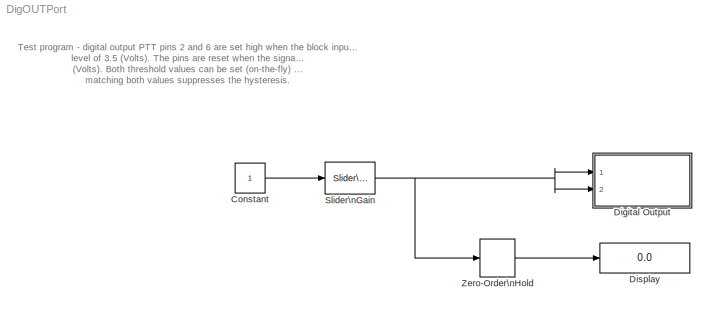
MODEL DigOUTPort
KIND model
BLOCK [Constant] Constant
  SID = 1
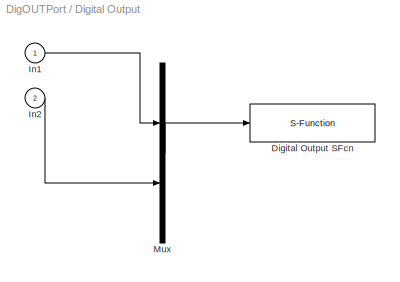
BLOCK [SubSystem] Digital Output
  Ports = [2]
  RequestExecContextInheritance = off
  SID = 2
  ShowPortLabels = none
  Tag = mcTarget_digOut
BLOCK [S-Function] Digital Output/Digital Output SFcn
  EnableBusSupport = off
  FunctionName = digOut_sfcn_9S12
  Parameters = sampletime, port, pins, Von, Voff
  Ports = [1]
  SFcnIsStateOwnerBlock = off
  SFunctionDeploymentMode = off
  SID = 2:3
  Tag = mcTarget_digOut
BLOCK [Inport] Digital Output/In1
  IconDisplay = Port number
  SID = 2:1
BLOCK [Inport] Digital Output/In2
  IconDisplay = Port number
  Port = 2
  SID = 2:2
BLOCK [Mux] Digital Output/Mux
  DisplayOption = bar
  Inputs = 2
  Ports = [2, 1]
  SID = 2:4
BLOCK [Display] Display
  Decimation = 1
  Ports = [1]
  SID = 3
BLOCK [Reference] Slider\nGain  REF=simulink/Math\nOperations/Slider\nGain
  FunctionWithSeparateData = off
  Ports = [1, 1]
  RTWMemSecDataConstants = Inherit from model
  RTWMemSecDataInternal = Inherit from model
  RTWMemSecDataParameters = Inherit from model
  RTWMemSecFuncExecute = Inherit from model
  RTWMemSecFuncInitTerm = Inherit from model
  SID = 4
  ShowPortLabels = FromPortIcon
  SourceBlock = simulink/Math\nOperations/Slider\nGain
  SourceProductBaseCode = SL
  SourceProductName = Simulink
  SourceType = Slider Gain
  SystemSampleTime = -1
  gain = 3.7373
  high = 5
  low = 0
BLOCK [ZeroOrderHold] Zero-Order\nHold
  SID = 5
  SampleTime = 0.1
ANNOTATION (root): Test program - digital output PTT pins 2 and 6 are set high when the block input signal reaches a\n level of 3.5 (Volts). The pins are reset when the signal level falls below 1.5 \n (Volts). Both threshold values can be set (on-the-fly) in the block parameters; \n matching both values suppresses the hysteresis.
LINE Constant:1 -> Slider\nGain:1
LINE Digital Output/In1:1 -> Digital Output/Mux:1
LINE Digital Output/In2:1 -> Digital Output/Mux:2
LINE Digital Output/Mux:1 -> Digital Output/Digital Output SFcn:1
NET Slider\nGain:1 -> Digital Output:1, Digital Output:2, Zero-Order\nHold:1
LINE Zero-Order\nHold:1 -> Display:1
note: NET lines group one-source signal fan-out (src -> all destinations, sorted); 1:1 wires keep LINE
